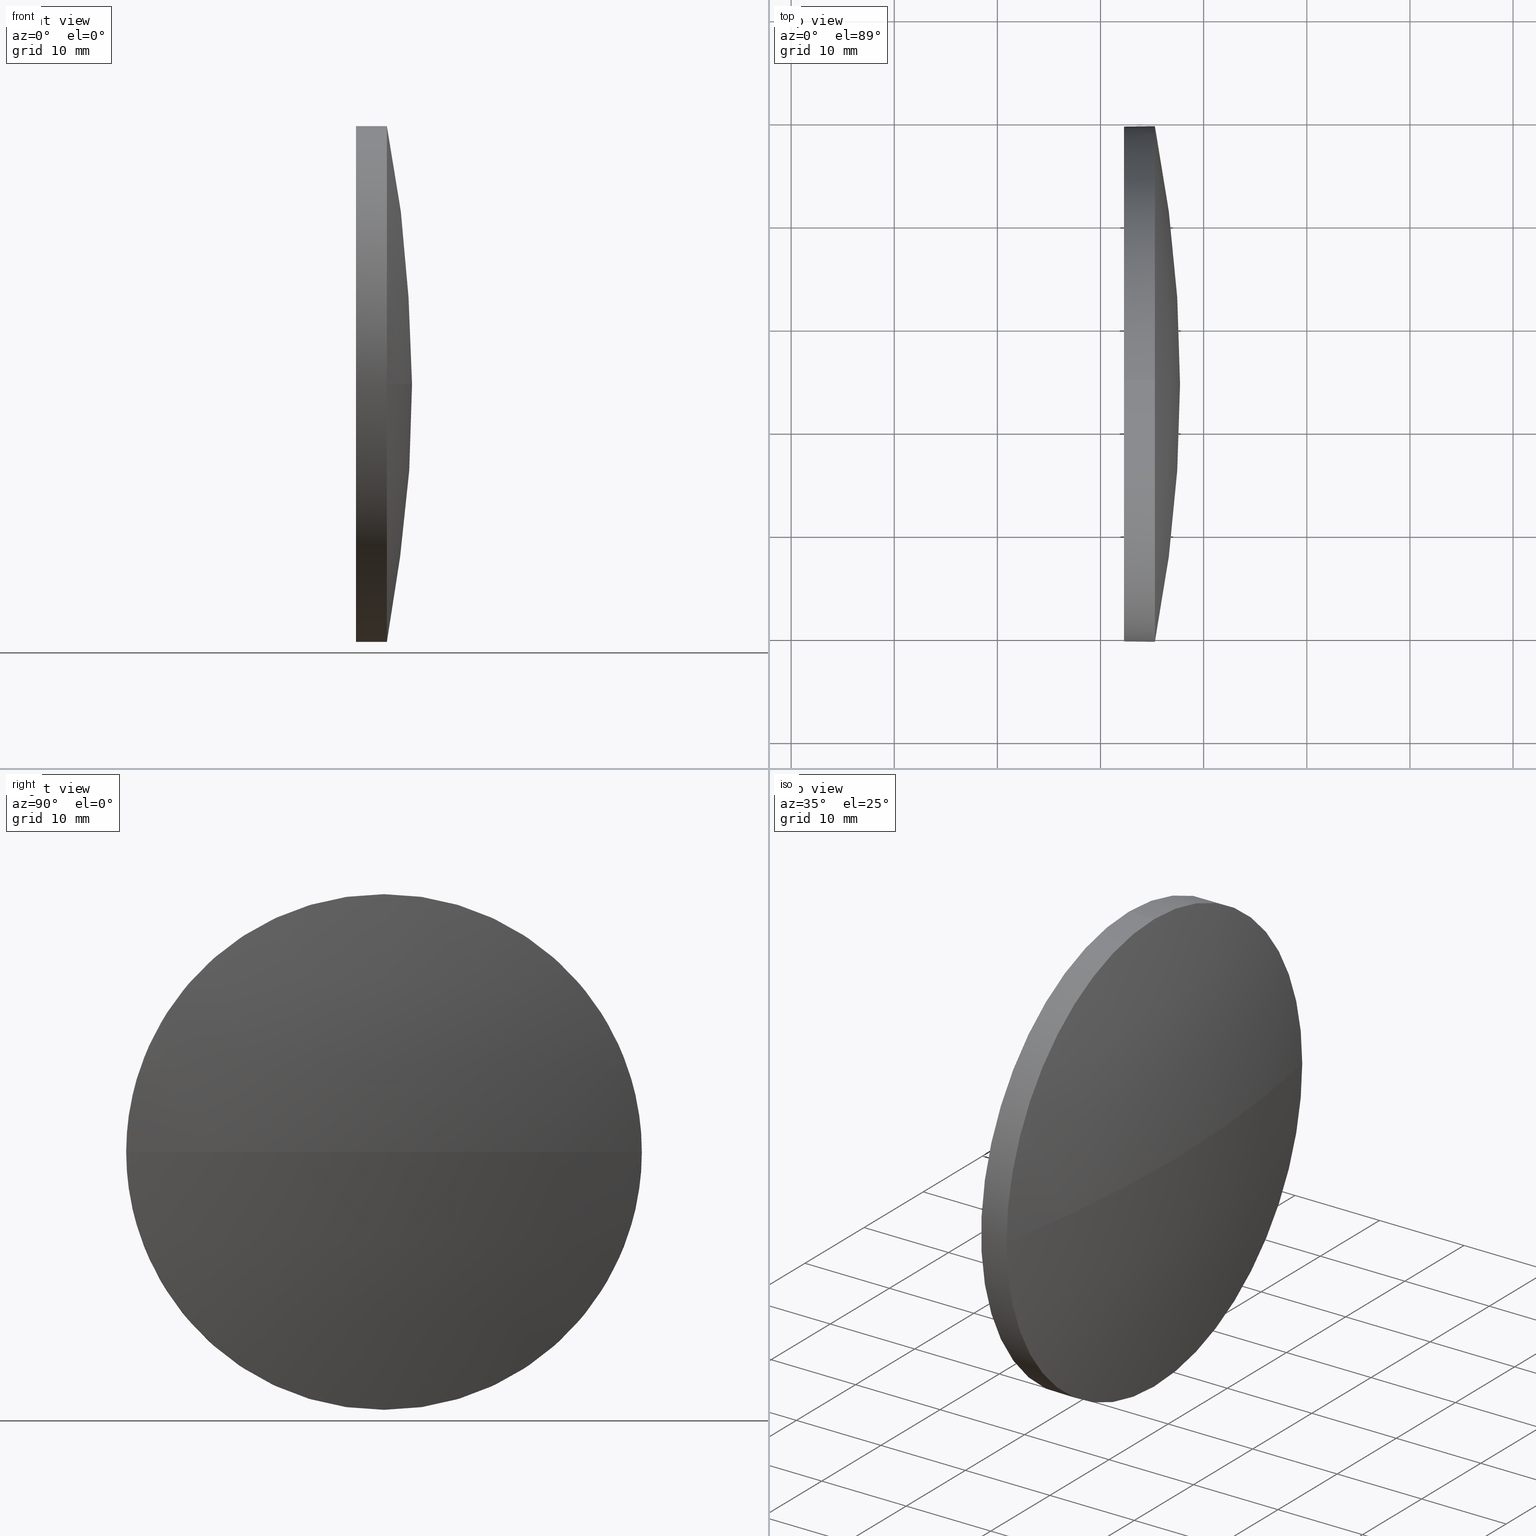
[diagram: canonical four-view strip — front | top / right | iso, engineering-drawing reading convention]
A machine part, canonical four-view strip (front | top / right | iso — engineering-drawing reading convention). The complete STEP part file that produces these views, byte-faithful:
ISO-10303-21;
HEADER;
FILE_DESCRIPTION (( 'STEP AP214' ),
    '1' );
FILE_NAME ('100156.STEP',
    '2019-05-16T02:36:01',
    ( '' ),
    ( '' ),
    'SwSTEP 2.0',
    'SolidWorks 2016',
    '' );
FILE_SCHEMA (( 'AUTOMOTIVE_DESIGN' ));
ENDSEC;

DATA;
#1 = ORIENTED_EDGE ( 'NONE', *, *, #85, .T. ) ;
#2 = EDGE_CURVE ( 'NONE', #66, #98, #54, .T. ) ;
#3 = DIRECTION ( 'NONE',  ( 0.0000000000000000000, 0.0000000000000000000, 1.000000000000000000 ) ) ;
#4 = DIRECTION ( 'NONE',  ( 0.0000000000000000000, -1.000000000000000000, -1.224646799147353200E-016 ) ) ;
#5 = SURFACE_STYLE_FILL_AREA ( #182 ) ;
#6 = PRODUCT_DEFINITION_SHAPE ( 'NONE', 'NONE',  #139 ) ;
#7 = DIRECTION ( 'NONE',  ( 0.0000000000000000000, 0.0000000000000000000, -1.000000000000000000 ) ) ;
#8 = ADVANCED_FACE ( 'NONE', ( #121 ), #155, .F. ) ;
#9 = DIRECTION ( 'NONE',  ( 0.0000000000000000000, 0.0000000000000000000, 1.000000000000000000 ) ) ;
#10 = AXIS2_PLACEMENT_3D ( 'NONE', #171, #130, #116 ) ;
#11 = VERTEX_POINT ( 'NONE', #43 ) ;
#12 = CYLINDRICAL_SURFACE ( 'NONE', #173, 25.00000000000000000 ) ;
#13 = DIRECTION ( 'NONE',  ( 0.0000000000000000000, -1.000000000000000000, 0.0000000000000000000 ) ) ;
#14 = AXIS2_PLACEMENT_3D ( 'NONE', #141, #172, #145 ) ;
#15 = LINE ( 'NONE', #143, #42 ) ;
#16 = DIRECTION ( 'NONE',  ( 0.0000000000000000000, 0.0000000000000000000, 1.000000000000000000 ) ) ;
#17 = DIRECTION ( 'NONE',  ( -1.000000000000000000, -0.0000000000000000000, -0.0000000000000000000 ) ) ;
#18 = CARTESIAN_POINT ( 'NONE',  ( 452.2711816770232100, -45.57836235787573300, 25.00000000000000000 ) ) ;
#19 = ORIENTED_EDGE ( 'NONE', *, *, #148, .T. ) ;
#20 =( GEOMETRIC_REPRESENTATION_CONTEXT ( 3 ) GLOBAL_UNCERTAINTY_ASSIGNED_CONTEXT ( ( #165 ) ) GLOBAL_UNIT_ASSIGNED_CONTEXT ( ( #21, #65, #33 ) ) REPRESENTATION_CONTEXT ( 'NONE', 'WORKASPACE' ) );
#21 =( LENGTH_UNIT ( ) NAMED_UNIT ( * ) SI_UNIT ( .MILLI., .METRE. ) );
#22 = FACE_OUTER_BOUND ( 'NONE', #113, .T. ) ;
#23 = ADVANCED_FACE ( 'NONE', ( #92 ), #12, .T. ) ;
#24 = SPHERICAL_SURFACE ( 'NONE', #27, 129.2937704918034000 ) ;
#25 = ORIENTED_EDGE ( 'NONE', *, *, #96, .T. ) ;
#26 = MANIFOLD_SOLID_BREP ( '��ת1', #31 ) ;
#27 = AXIS2_PLACEMENT_3D ( 'NONE', #95, #35, #146 ) ;
#28 = CIRCLE ( 'NONE', #184, 129.2937704918034000 ) ;
#29 = CARTESIAN_POINT ( 'NONE',  ( 448.1261699277823700, -45.57836235787573300, 0.0000000000000000000 ) ) ;
#30 = SURFACE_STYLE_FILL_AREA ( #164 ) ;
#31 = CLOSED_SHELL ( 'NONE', ( #23, #55, #122, #57, #8 ) ) ;
#32 =( NAMED_UNIT ( * ) SI_UNIT ( $, .STERADIAN. ) SOLID_ANGLE_UNIT ( ) );
#33 =( NAMED_UNIT ( * ) SI_UNIT ( $, .STERADIAN. ) SOLID_ANGLE_UNIT ( ) );
#34 = CARTESIAN_POINT ( 'NONE',  ( 455.2711816770232100, -20.57836235787565500, 3.061616997868375200E-015 ) ) ;
#35 = DIRECTION ( 'NONE',  ( 0.0000000000000000000, 0.0000000000000000000, 1.000000000000000000 ) ) ;
#36 = CIRCLE ( 'NONE', #107, 25.00000000000000000 ) ;
#37 = EDGE_CURVE ( 'NONE', #138, #11, #53, .T. ) ;
#38 = CARTESIAN_POINT ( 'NONE',  ( 448.1261699277823700, -45.57836235787573300, 25.00000000000000000 ) ) ;
#39 = FILL_AREA_STYLE_COLOUR ( '', #81 ) ;
#40 = AXIS2_PLACEMENT_3D ( 'NONE', #72, #9, #13 ) ;
#41 = UNCERTAINTY_MEASURE_WITH_UNIT (LENGTH_MEASURE( 1.000000000000000100E-005 ), #153, 'distance_accuracy_value', 'NONE');
#42 = VECTOR ( 'NONE', #94, 1000.000000000000000 ) ;
#43 = CARTESIAN_POINT ( 'NONE',  ( 455.2711816770232100, -45.57836235787573300, -25.00000000000000000 ) ) ;
#44 = VERTEX_POINT ( 'NONE', #127 ) ;
#45 = DIRECTION ( 'NONE',  ( -1.000000000000000000, -0.0000000000000000000, -0.0000000000000000000 ) ) ;
#46 = CARTESIAN_POINT ( 'NONE',  ( 452.2711816770232100, -45.57836235787573300, -25.00000000000000000 ) ) ;
#47 = CIRCLE ( 'NONE', #186, 25.00000000000000000 ) ;
#48 = ORIENTED_EDGE ( 'NONE', *, *, #109, .T. ) ;
#49 = CARTESIAN_POINT ( 'NONE',  ( 328.4174111852197500, -45.57836235787559100, 0.0000000000000000000 ) ) ;
#50 = CARTESIAN_POINT ( 'NONE',  ( 455.2711816770232100, -70.57836235787566200, 0.0000000000000000000 ) ) ;
#51 = COLOUR_RGB ( '',1.000000000000000000, 1.000000000000000000, 1.000000000000000000 ) ;
#52 =( GEOMETRIC_REPRESENTATION_CONTEXT ( 3 ) GLOBAL_UNCERTAINTY_ASSIGNED_CONTEXT ( ( #69 ) ) GLOBAL_UNIT_ASSIGNED_CONTEXT ( ( #142, #80, #132 ) ) REPRESENTATION_CONTEXT ( 'NONE', 'WORKASPACE' ) );
#53 = CIRCLE ( 'NONE', #61, 25.00000000000000000 ) ;
#54 = CIRCLE ( 'NONE', #117, 129.2937704918034000 ) ;
#55 = ADVANCED_FACE ( 'NONE', ( #102 ), #137, .T. ) ;
#56 = PRODUCT ( '100156', '100156', '', ( #160 ) ) ;
#57 = ADVANCED_FACE ( 'NONE', ( #181 ), #124, .T. ) ;
#58 = DIRECTION ( 'NONE',  ( -1.000000000000000000, 0.0000000000000000000, 0.0000000000000000000 ) ) ;
#59 = DIRECTION ( 'NONE',  ( 0.0000000000000000000, 0.0000000000000000000, -1.000000000000000000 ) ) ;
#60 = ORIENTED_EDGE ( 'NONE', *, *, #96, .F. ) ;
#61 = AXIS2_PLACEMENT_3D ( 'NONE', #136, #111, #140 ) ;
#62 = DIRECTION ( 'NONE',  ( 0.0000000000000000000, 0.0000000000000000000, 1.000000000000000000 ) ) ;
#63 = APPLICATION_PROTOCOL_DEFINITION ( 'draft international standard', 'automotive_design', 1998, #78 ) ;
#64 =( GEOMETRIC_REPRESENTATION_CONTEXT ( 3 ) GLOBAL_UNCERTAINTY_ASSIGNED_CONTEXT ( ( #41 ) ) GLOBAL_UNIT_ASSIGNED_CONTEXT ( ( #153, #76, #32 ) ) REPRESENTATION_CONTEXT ( 'NONE', 'WORKASPACE' ) );
#65 =( NAMED_UNIT ( * ) PLANE_ANGLE_UNIT ( ) SI_UNIT ( $, .RADIAN. ) );
#66 = VERTEX_POINT ( 'NONE', #170 ) ;
#67 = CARTESIAN_POINT ( 'NONE',  ( 452.2711816770232100, -45.57836235787573300, 0.0000000000000000000 ) ) ;
#68 = APPLICATION_PROTOCOL_DEFINITION ( 'draft international standard', 'automotive_design', 1998, #129 ) ;
#69 = UNCERTAINTY_MEASURE_WITH_UNIT (LENGTH_MEASURE( 1.000000000000000100E-005 ), #142, 'distance_accuracy_value', 'NONE');
#70 = ORIENTED_EDGE ( 'NONE', *, *, #158, .F. ) ;
#71 = ORIENTED_EDGE ( 'NONE', *, *, #161, .F. ) ;
#72 = CARTESIAN_POINT ( 'NONE',  ( 328.4174111852197500, -45.57836235787559100, 0.0000000000000000000 ) ) ;
#73 = DIRECTION ( 'NONE',  ( 0.0000000000000000000, 0.0000000000000000000, 1.000000000000000000 ) ) ;
#74 = LINE ( 'NONE', #38, #168 ) ;
#75 = EDGE_LOOP ( 'NONE', ( #157, #169, #71, #110, #48 ) ) ;
#76 =( NAMED_UNIT ( * ) PLANE_ANGLE_UNIT ( ) SI_UNIT ( $, .RADIAN. ) );
#77 = AXIS2_PLACEMENT_3D ( 'NONE', #104, #119, #83 ) ;
#78 = APPLICATION_CONTEXT ( 'automotive_design' ) ;
#79 = EDGE_CURVE ( 'NONE', #147, #88, #47, .T. ) ;
#80 =( NAMED_UNIT ( * ) PLANE_ANGLE_UNIT ( ) SI_UNIT ( $, .RADIAN. ) );
#81 = COLOUR_RGB ( '',1.000000000000000000, 1.000000000000000000, 1.000000000000000000 ) ;
#82 = EDGE_LOOP ( 'NONE', ( #166, #135 ) ) ;
#83 = DIRECTION ( 'NONE',  ( 0.0000000000000000000, 0.0000000000000000000, 1.000000000000000000 ) ) ;
#84 = ORIENTED_EDGE ( 'NONE', *, *, #109, .F. ) ;
#85 = EDGE_CURVE ( 'NONE', #66, #138, #28, .T. ) ;
#86 = ORIENTED_EDGE ( 'NONE', *, *, #2, .T. ) ;
#87 = DIRECTION ( 'NONE',  ( 1.000000000000000000, 0.0000000000000000000, 0.0000000000000000000 ) ) ;
#88 = VERTEX_POINT ( 'NONE', #18 ) ;
#89 = EDGE_CURVE ( 'NONE', #11, #147, #15, .T. ) ;
#90 = FILL_AREA_STYLE_COLOUR ( '', #51 ) ;
#91 = CIRCLE ( 'NONE', #77, 25.00000000000000000 ) ;
#92 = FACE_OUTER_BOUND ( 'NONE', #75, .T. ) ;
#93 = CIRCLE ( 'NONE', #10, 25.00000000000000000 ) ;
#94 = DIRECTION ( 'NONE',  ( -1.000000000000000000, -0.0000000000000000000, -0.0000000000000000000 ) ) ;
#95 = CARTESIAN_POINT ( 'NONE',  ( 328.4174111852197500, -45.57836235787559100, 0.0000000000000000000 ) ) ;
#96 = EDGE_CURVE ( 'NONE', #98, #44, #91, .T. ) ;
#97 = DIRECTION ( 'NONE',  ( -1.000000000000000000, -0.0000000000000000000, -0.0000000000000000000 ) ) ;
#98 = VERTEX_POINT ( 'NONE', #50 ) ;
#99 = ORIENTED_EDGE ( 'NONE', *, *, #37, .F. ) ;
#100 = PRODUCT_DEFINITION_FORMATION_WITH_SPECIFIED_SOURCE ( '�κ�', '', #56, .NOT_KNOWN. ) ;
#101 = PRESENTATION_STYLE_ASSIGNMENT (( #159 ) ) ;
#102 = FACE_OUTER_BOUND ( 'NONE', #126, .T. ) ;
#103 = CARTESIAN_POINT ( 'NONE',  ( 452.2711816770232100, -45.57836235787573300, 0.0000000000000000000 ) ) ;
#104 = CARTESIAN_POINT ( 'NONE',  ( 455.2711816770232100, -45.57836235787573300, 0.0000000000000000000 ) ) ;
#105 = CIRCLE ( 'NONE', #115, 25.00000000000000000 ) ;
#106 = DIRECTION ( 'NONE',  ( 0.0000000000000000000, -1.224646799147353200E-016, 1.000000000000000000 ) ) ;
#107 = AXIS2_PLACEMENT_3D ( 'NONE', #118, #97, #163 ) ;
#108 = ORIENTED_EDGE ( 'NONE', *, *, #158, .T. ) ;
#109 = EDGE_CURVE ( 'NONE', #44, #138, #93, .T. ) ;
#110 = ORIENTED_EDGE ( 'NONE', *, *, #148, .F. ) ;
#111 = DIRECTION ( 'NONE',  ( -1.000000000000000000, -0.0000000000000000000, -0.0000000000000000000 ) ) ;
#112 = CARTESIAN_POINT ( 'NONE',  ( 448.1261699277823700, -45.57836235787573300, 0.0000000000000000000 ) ) ;
#113 = EDGE_LOOP ( 'NONE', ( #183, #86, #70, #99 ) ) ;
#114 = PRESENTATION_STYLE_ASSIGNMENT (( #123 ) ) ;
#115 = AXIS2_PLACEMENT_3D ( 'NONE', #175, #17, #16 ) ;
#116 = DIRECTION ( 'NONE',  ( 0.0000000000000000000, 0.0000000000000000000, 1.000000000000000000 ) ) ;
#117 = AXIS2_PLACEMENT_3D ( 'NONE', #167, #7, #58 ) ;
#118 = CARTESIAN_POINT ( 'NONE',  ( 455.2711816770232100, -45.57836235787573300, 0.0000000000000000000 ) ) ;
#119 = DIRECTION ( 'NONE',  ( -1.000000000000000000, -0.0000000000000000000, -0.0000000000000000000 ) ) ;
#120 = PRODUCT_DEFINITION_CONTEXT ( 'detailed design', #129, 'design' ) ;
#121 = FACE_OUTER_BOUND ( 'NONE', #82, .T. ) ;
#122 = ADVANCED_FACE ( 'NONE', ( #22 ), #24, .T. ) ;
#123 = SURFACE_STYLE_USAGE ( .BOTH. , #152 ) ;
#124 = CYLINDRICAL_SURFACE ( 'NONE', #156, 25.00000000000000000 ) ;
#125 = MECHANICAL_DESIGN_GEOMETRIC_PRESENTATION_REPRESENTATION (  '', ( #179 ), #52 ) ;
#126 = EDGE_LOOP ( 'NONE', ( #174, #1, #84, #60 ) ) ;
#127 = CARTESIAN_POINT ( 'NONE',  ( 455.2711816770232100, -45.57836235787573300, 25.00000000000000000 ) ) ;
#128 = STYLED_ITEM ( 'NONE', ( #114 ), #26 ) ;
#129 = APPLICATION_CONTEXT ( 'automotive_design' ) ;
#130 = DIRECTION ( 'NONE',  ( -1.000000000000000000, -0.0000000000000000000, -0.0000000000000000000 ) ) ;
#131 = ORIENTED_EDGE ( 'NONE', *, *, #79, .F. ) ;
#132 =( NAMED_UNIT ( * ) SI_UNIT ( $, .STERADIAN. ) SOLID_ANGLE_UNIT ( ) );
#133 = PRESENTATION_LAYER_ASSIGNMENT (  '', '', ( #179 ) ) ;
#134 = PRODUCT_RELATED_PRODUCT_CATEGORY ( 'part', '', ( #56 ) ) ;
#135 = ORIENTED_EDGE ( 'NONE', *, *, #79, .T. ) ;
#136 = CARTESIAN_POINT ( 'NONE',  ( 455.2711816770232100, -45.57836235787573300, 0.0000000000000000000 ) ) ;
#137 = SPHERICAL_SURFACE ( 'NONE', #40, 129.2937704918034000 ) ;
#138 = VERTEX_POINT ( 'NONE', #34 ) ;
#139 = PRODUCT_DEFINITION ( 'δ֪', '', #100, #120 ) ;
#140 = DIRECTION ( 'NONE',  ( 0.0000000000000000000, 0.0000000000000000000, 1.000000000000000000 ) ) ;
#141 = CARTESIAN_POINT ( 'NONE',  ( 0.0000000000000000000, 0.0000000000000000000, 0.0000000000000000000 ) ) ;
#142 =( LENGTH_UNIT ( ) NAMED_UNIT ( * ) SI_UNIT ( .MILLI., .METRE. ) );
#143 = CARTESIAN_POINT ( 'NONE',  ( 448.1261699277823700, -45.57836235787573300, -25.00000000000000000 ) ) ;
#144 = AXIS2_PLACEMENT_3D ( 'NONE', #103, #87, #59 ) ;
#145 = DIRECTION ( 'NONE',  ( 1.000000000000000000, 0.0000000000000000000, 0.0000000000000000000 ) ) ;
#146 = DIRECTION ( 'NONE',  ( 0.0000000000000000000, -1.000000000000000000, 0.0000000000000000000 ) ) ;
#147 = VERTEX_POINT ( 'NONE', #46 ) ;
#148 = EDGE_CURVE ( 'NONE', #44, #88, #74, .T. ) ;
#149 = ADVANCED_BREP_SHAPE_REPRESENTATION ( '100156', ( #26, #14 ), #20 ) ;
#150 = EDGE_LOOP ( 'NONE', ( #154, #108, #25, #19, #131 ) ) ;
#151 = PRESENTATION_LAYER_ASSIGNMENT (  '', '', ( #128 ) ) ;
#152 = SURFACE_SIDE_STYLE ('',( #5 ) ) ;
#153 =( LENGTH_UNIT ( ) NAMED_UNIT ( * ) SI_UNIT ( .MILLI., .METRE. ) );
#154 = ORIENTED_EDGE ( 'NONE', *, *, #89, .F. ) ;
#155 = PLANE ( 'NONE',  #144 ) ;
#156 = AXIS2_PLACEMENT_3D ( 'NONE', #29, #45, #62 ) ;
#157 = ORIENTED_EDGE ( 'NONE', *, *, #37, .T. ) ;
#158 = EDGE_CURVE ( 'NONE', #11, #98, #36, .T. ) ;
#159 = SURFACE_STYLE_USAGE ( .BOTH. , #162 ) ;
#160 = PRODUCT_CONTEXT ( 'NONE', #78, 'mechanical' ) ;
#161 = EDGE_CURVE ( 'NONE', #88, #147, #105, .T. ) ;
#162 = SURFACE_SIDE_STYLE ('',( #30 ) ) ;
#163 = DIRECTION ( 'NONE',  ( 0.0000000000000000000, 0.0000000000000000000, 1.000000000000000000 ) ) ;
#164 = FILL_AREA_STYLE ('',( #39 ) ) ;
#165 = UNCERTAINTY_MEASURE_WITH_UNIT (LENGTH_MEASURE( 1.000000000000000100E-005 ), #21, 'distance_accuracy_value', 'NONE');
#166 = ORIENTED_EDGE ( 'NONE', *, *, #161, .T. ) ;
#167 = CARTESIAN_POINT ( 'NONE',  ( 328.4174111852197500, -45.57836235787559100, 0.0000000000000000000 ) ) ;
#168 = VECTOR ( 'NONE', #176, 1000.000000000000000 ) ;
#169 = ORIENTED_EDGE ( 'NONE', *, *, #89, .T. ) ;
#170 = CARTESIAN_POINT ( 'NONE',  ( 457.7111816770232100, -45.57836235787559800, 0.0000000000000000000 ) ) ;
#171 = CARTESIAN_POINT ( 'NONE',  ( 455.2711816770232100, -45.57836235787573300, 0.0000000000000000000 ) ) ;
#172 = DIRECTION ( 'NONE',  ( 0.0000000000000000000, 0.0000000000000000000, 1.000000000000000000 ) ) ;
#173 = AXIS2_PLACEMENT_3D ( 'NONE', #112, #180, #73 ) ;
#174 = ORIENTED_EDGE ( 'NONE', *, *, #2, .F. ) ;
#175 = CARTESIAN_POINT ( 'NONE',  ( 452.2711816770232100, -45.57836235787573300, 0.0000000000000000000 ) ) ;
#176 = DIRECTION ( 'NONE',  ( -1.000000000000000000, -0.0000000000000000000, -0.0000000000000000000 ) ) ;
#177 = SHAPE_DEFINITION_REPRESENTATION ( #6, #149 ) ;
#178 = MECHANICAL_DESIGN_GEOMETRIC_PRESENTATION_REPRESENTATION (  '', ( #128 ), #64 ) ;
#179 = STYLED_ITEM ( 'NONE', ( #101 ), #149 ) ;
#180 = DIRECTION ( 'NONE',  ( -1.000000000000000000, -0.0000000000000000000, -0.0000000000000000000 ) ) ;
#181 = FACE_OUTER_BOUND ( 'NONE', #150, .T. ) ;
#182 = FILL_AREA_STYLE ('',( #90 ) ) ;
#183 = ORIENTED_EDGE ( 'NONE', *, *, #85, .F. ) ;
#184 = AXIS2_PLACEMENT_3D ( 'NONE', #49, #106, #4 ) ;
#185 = DIRECTION ( 'NONE',  ( -1.000000000000000000, -0.0000000000000000000, -0.0000000000000000000 ) ) ;
#186 = AXIS2_PLACEMENT_3D ( 'NONE', #67, #185, #3 ) ;
ENDSEC;
END-ISO-10303-21;
